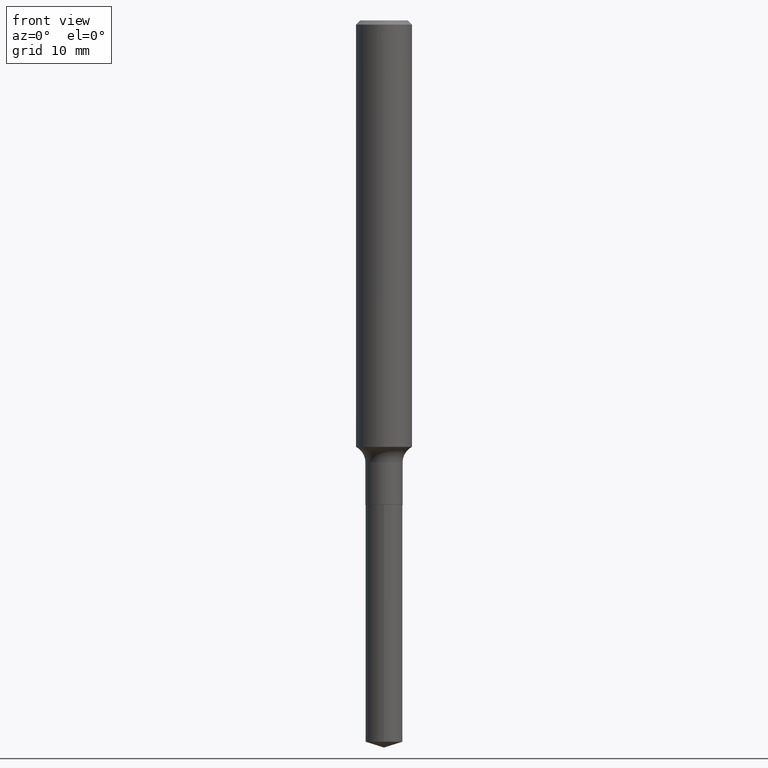
[diagram: clean part render]
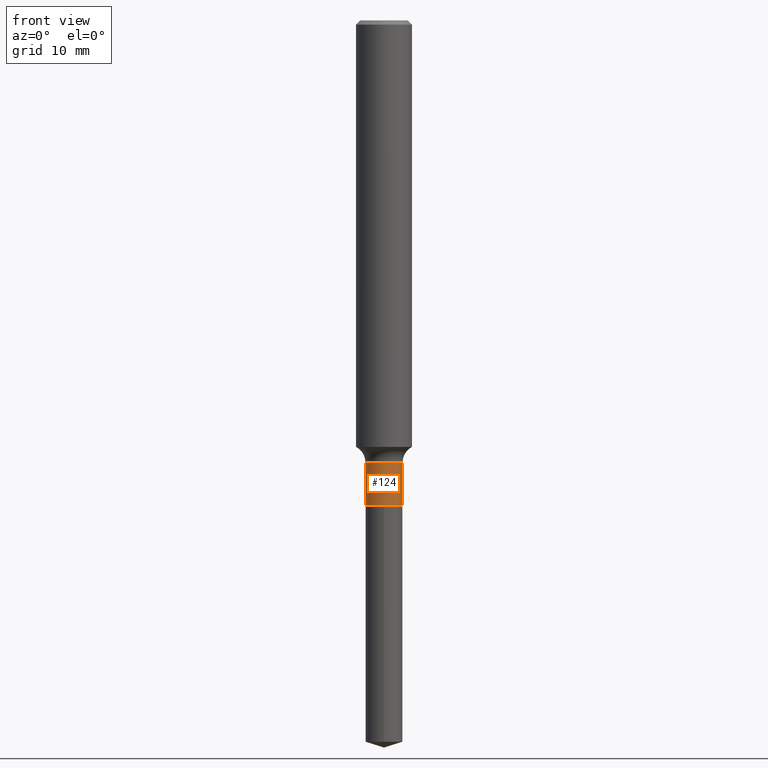
[diagram: same view with one face highlighted and labeled with its STEP entity id]
A machine part, front view. The second image highlights one B-rep face of the part: STEP entity #124.
In plain terms, the highlighted cylindrical surface (edge-blend (fillet) strip) has radius 2.1082 mm, axis along (-0, 0, 1).
Its self-contained STEP definition (entity closure, byte-faithful):
#7 = AXIS2_PLACEMENT_3D ( 'NONE', #214, #75, #219 ) ;
#14 = CARTESIAN_POINT ( 'NONE',  ( 0.08299999999999999045, -7.475610694597056827E-15, -1.975100000000000300 ) ) ;
#17 = CARTESIAN_POINT ( 'NONE',  ( 0.000000000000000000, 0.000000000000000000, 0.000000000000000000 ) ) ;
#22 = CYLINDRICAL_SURFACE ( 'NONE', #265, 0.08299999999999999045 ) ;
#30 = EDGE_LOOP ( 'NONE', ( #213, #148, #97, #68 ) ) ;
#36 = CARTESIAN_POINT ( 'NONE',  ( -0.08299999999999999045, 5.897504706808830864E-16, -4.082716124911570857E-30 ) ) ;
#40 = DIRECTION ( 'NONE',  ( -2.445468806185136877E-29, 3.491481338843145188E-15, 1.000000000000000000 ) ) ;
#66 = DIRECTION ( 'NONE',  ( -2.445468806185136597E-29, 3.491481338843145583E-15, 1.000000000000000000 ) ) ;
#68 = ORIENTED_EDGE ( 'NONE', *, *, #227, .F. ) ;
#75 = DIRECTION ( 'NONE',  ( -2.445468806185136597E-29, 3.491481338843145583E-15, 1.000000000000000000 ) ) ;
#95 = VERTEX_POINT ( 'NONE', #386 ) ;
#97 = ORIENTED_EDGE ( 'NONE', *, *, #343, .T. ) ;
#100 = DIRECTION ( 'NONE',  ( -2.445468806185136597E-29, 3.491481338843145583E-15, 1.000000000000000000 ) ) ;
#118 = LINE ( 'NONE', #36, #122 ) ;
#122 = VECTOR ( 'NONE', #40, 39.37007874015748143 ) ;
#124 = ADVANCED_FACE ( 'NONE', ( #250 ), #22, .T. ) ;
#143 = VERTEX_POINT ( 'NONE', #288 ) ;
#148 = ORIENTED_EDGE ( 'NONE', *, *, #205, .T. ) ;
#150 = DIRECTION ( 'NONE',  ( -2.445468806185136877E-29, 3.491481338843145188E-15, 1.000000000000000000 ) ) ;
#162 = CIRCLE ( 'NONE', #7, 0.08299999999999999045 ) ;
#179 = DIRECTION ( 'NONE',  ( 1.000000000000000000, -6.982962677686266711E-15, 4.876176775795935793E-29 ) ) ;
#185 = CARTESIAN_POINT ( 'NONE',  ( -0.08299999999999999045, -6.638663345126081144E-15, -2.165499999999999758 ) ) ;
#205 = EDGE_CURVE ( 'NONE', #342, #95, #162, .T. ) ;
#213 = ORIENTED_EDGE ( 'NONE', *, *, #268, .F. ) ;
#214 = CARTESIAN_POINT ( 'NONE',  ( 5.295662699793913130E-29, -7.560802839264830935E-15, -2.165499999999999758 ) ) ;
#219 = DIRECTION ( 'NONE',  ( 1.000000000000000000, -6.982962677686263555E-15, 0.000000000000000000 ) ) ;
#227 = EDGE_CURVE ( 'NONE', #143, #261, #385, .T. ) ;
#250 = FACE_OUTER_BOUND ( 'NONE', #30, .T. ) ;
#261 = VERTEX_POINT ( 'NONE', #14 ) ;
#265 = AXIS2_PLACEMENT_3D ( 'NONE', #17, #66, #179 ) ;
#268 = EDGE_CURVE ( 'NONE', #342, #143, #118, .T. ) ;
#288 = CARTESIAN_POINT ( 'NONE',  ( -0.08299999999999999045, -6.638663345126081144E-15, -1.975100000000000300 ) ) ;
#294 = CARTESIAN_POINT ( 'NONE',  ( 0.08299999999999999045, -5.795859022479600896E-16, 4.047226723910626092E-30 ) ) ;
#342 = VERTEX_POINT ( 'NONE', #185 ) ;
#343 = EDGE_CURVE ( 'NONE', #95, #261, #446, .T. ) ;
#373 = CARTESIAN_POINT ( 'NONE',  ( 4.830045439096264236E-29, -6.896024792349097132E-15, -1.975100000000000300 ) ) ;
#385 = CIRCLE ( 'NONE', #483, 0.08299999999999999045 ) ;
#386 = CARTESIAN_POINT ( 'NONE',  ( 0.08299999999999999045, -8.140388741512790630E-15, -2.165499999999999758 ) ) ;
#404 = DIRECTION ( 'NONE',  ( 1.000000000000000000, -6.982962677686263555E-15, 0.000000000000000000 ) ) ;
#446 = LINE ( 'NONE', #294, #466 ) ;
#466 = VECTOR ( 'NONE', #150, 39.37007874015748143 ) ;
#483 = AXIS2_PLACEMENT_3D ( 'NONE', #373, #100, #404 ) ;